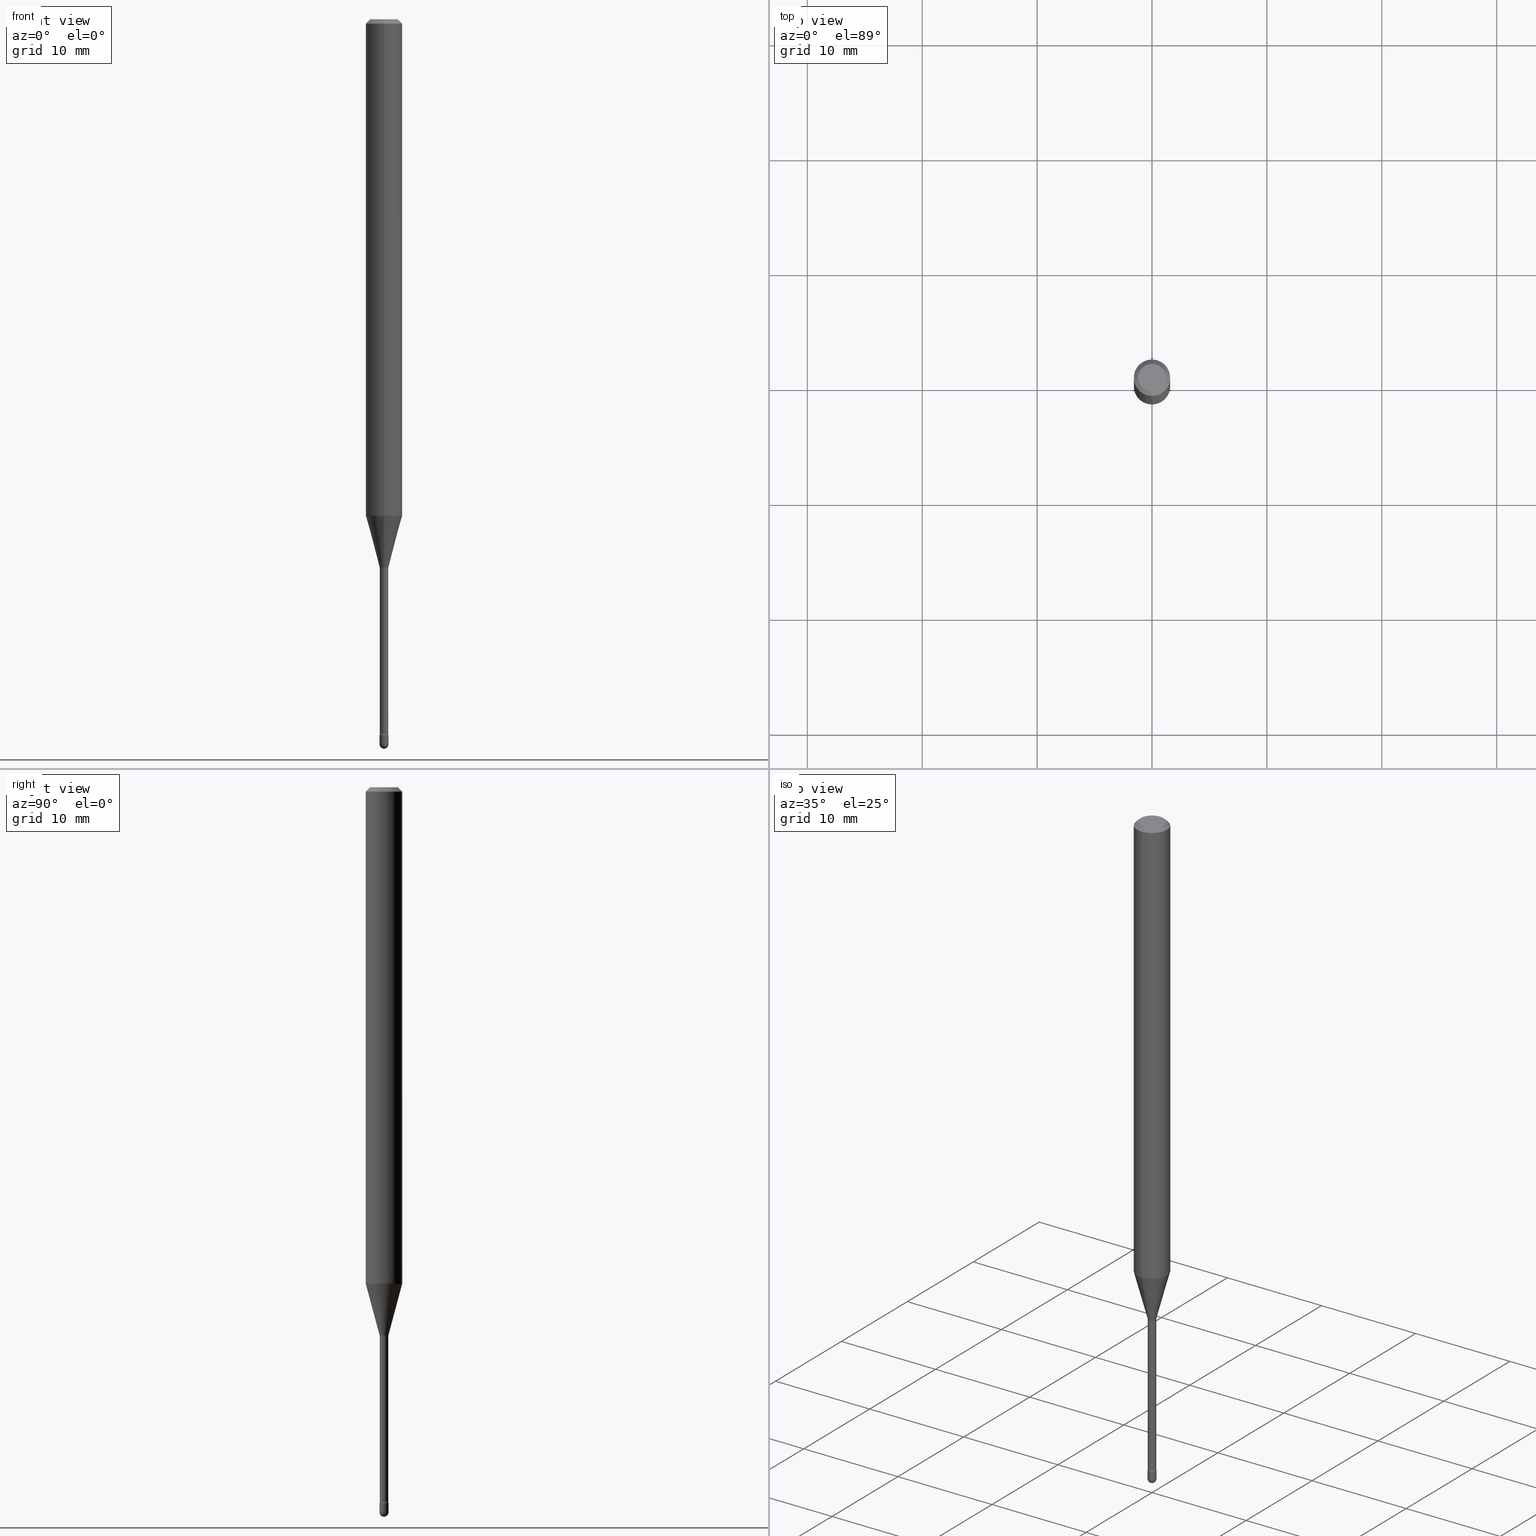
[diagram: canonical four-view strip — front | top / right | iso, engineering-drawing reading convention]
A machine part, canonical four-view strip (front | top / right | iso — engineering-drawing reading convention). The complete STEP part file that produces these views, byte-faithful:
ISO-10303-21;
HEADER;
FILE_DESCRIPTION (( 'STEP AP203' ),
    '1' );
FILE_NAME ('09443.STEP',
    '2024-04-09T23:13:16',
    ( '' ),
    ( '' ),
    'SwSTEP 2.0',
    'SolidWorks 2023',
    '' );
FILE_SCHEMA (( 'CONFIG_CONTROL_DESIGN' ));
ENDSEC;

DATA;
#1 = SPHERICAL_SURFACE ( 'NONE', #308, 0.01549999999999993744 ) ;
#2 = CARTESIAN_POINT ( 'NONE',  ( 6.075767248966972494E-29, -8.674585386355795965E-15, -2.484500000000000153 ) ) ;
#3 = APPLICATION_CONTEXT ( 'configuration controlled 3d designs of mechanical parts and assemblies' ) ;
#4 = ORIENTED_EDGE ( 'NONE', *, *, #561, .T. ) ;
#5 = DIRECTION ( 'NONE',  ( -2.445473815707476510E-29, 3.491474164922030519E-15, 1.000000000000000000 ) ) ;
#6 = DIRECTION ( 'NONE',  ( -2.445473815707476510E-29, 3.491474164922030519E-15, 1.000000000000000000 ) ) ;
#7 = AXIS2_PLACEMENT_3D ( 'NONE', #47, #6, #433 ) ;
#8 = EDGE_CURVE ( 'NONE', #174, #183, #133, .T. ) ;
#9 = DIMENSIONAL_EXPONENTS ( 1.000000000000000000, 0.000000000000000000, 0.000000000000000000, 0.000000000000000000, 0.000000000000000000, 0.000000000000000000, 0.000000000000000000 ) ;
#10 = ADVANCED_FACE ( 'NONE', ( #140 ), #106, .T. ) ;
#11 = DIRECTION ( 'NONE',  ( -2.445468806185136597E-29, 3.491481338843145583E-15, 1.000000000000000000 ) ) ;
#12 = DIRECTION ( 'NONE',  ( -2.445473815707476510E-29, 3.491474164922030519E-15, 1.000000000000000000 ) ) ;
#13 = DIRECTION ( 'NONE',  ( -2.445473815707476510E-29, 3.491474164922030519E-15, 1.000000000000000000 ) ) ;
#14 = CARTESIAN_POINT ( 'NONE',  ( 0.01549999999999999989, -8.727830476773153796E-15, -2.484500000000000153 ) ) ;
#15 = VECTOR ( 'NONE', #447, 39.37007874015748143 ) ;
#16 = DIRECTION ( 'NONE',  ( -2.445473815707476510E-29, 3.491474164922030519E-15, 1.000000000000000000 ) ) ;
#17 = CIRCLE ( 'NONE', #376, 0.06250000000000000000 ) ;
#18 = DIRECTION ( 'NONE',  ( 1.000000000000000000, -6.982962677686301420E-15, 0.000000000000000000 ) ) ;
#19 = EDGE_CURVE ( 'NONE', #302, #504, #483, .T. ) ;
#20 = CARTESIAN_POINT ( 'NONE',  ( 4.602310636769652825E-29, -6.570879850603192255E-15, -1.881974787463811083 ) ) ;
#21 = APPROVAL ( #369, 'UNSPECIFIED' ) ;
#22 = APPLICATION_PROTOCOL_DEFINITION ( 'international standard', 'config_control_design', 1994, #3 ) ;
#23 = ORIENTED_EDGE ( 'NONE', *, *, #29, .F. ) ;
#24 = ORIENTED_EDGE ( 'NONE', *, *, #389, .F. ) ;
#25 = CARTESIAN_POINT ( 'NONE',  ( 2.755524256971723102E-16, 0.01506111260565742675, -1.878092501787273161 ) ) ;
#26 = PERSON ( 'UNSPECIFIED', 'UNSPECIFIED', 'UNSPECIFIED', ('UNSPECIFIED'), ('UNSPECIFIED'), ('UNSPECIFIED') ) ;
#27 = ORIENTED_EDGE ( 'NONE', *, *, #380, .F. ) ;
#28 = VECTOR ( 'NONE', #424, 39.37007874015748143 ) ;
#29 = EDGE_CURVE ( 'NONE', #455, #549, #48, .T. ) ;
#30 = APPROVAL_DATE_TIME ( #156, #21 ) ;
#31 = DIRECTION ( 'NONE',  ( 6.982962677686265922E-15, 1.000000000000000000, 0.000000000000000000 ) ) ;
#32 = EDGE_LOOP ( 'NONE', ( #89, #385, #559, #365 ) ) ;
#33 = AXIS2_PLACEMENT_3D ( 'NONE', #277, #404, #18 ) ;
#34 = CARTESIAN_POINT ( 'NONE',  ( 0.000000000000000000, 0.000000000000000000, 0.000000000000000000 ) ) ;
#35 = VECTOR ( 'NONE', #310, 39.37007874015748143 ) ;
#36 = CARTESIAN_POINT ( 'NONE',  ( -1.169113584055446105E-44, 1.669184350826100908E-30, 4.780733988912460139E-16 ) ) ;
#37 = DIRECTION ( 'NONE',  ( -2.445473815707476510E-29, 3.491474164922030519E-15, 1.000000000000000000 ) ) ;
#38 = ORIENTED_EDGE ( 'NONE', *, *, #452, .T. ) ;
#39 = DIRECTION ( 'NONE',  ( 2.445473815707476510E-29, -3.491474164922030519E-15, -1.000000000000000000 ) ) ;
#40 = EDGE_LOOP ( 'NONE', ( #511, #178, #381, #75 ) ) ;
#41 = DIRECTION ( 'NONE',  ( 1.000000000000000000, -7.105427357601001070E-15, 4.926315420686887018E-29 ) ) ;
#42 = VECTOR ( 'NONE', #336, 39.37007874015748143 ) ;
#43 = AXIS2_PLACEMENT_3D ( 'NONE', #20, #13, #322 ) ;
#44 = CC_DESIGN_PERSON_AND_ORGANIZATION_ASSIGNMENT ( #213, #548, ( #386 ) ) ;
#45 = DESIGN_CONTEXT ( 'detailed design', #476, 'design' ) ;
#46 = EDGE_CURVE ( 'NONE', #111, #455, #422, .T. ) ;
#47 = CARTESIAN_POINT ( 'NONE',  ( 4.159868743774115107E-29, -5.939165717115708195E-15, -1.701048163777072908 ) ) ;
#48 = CIRCLE ( 'NONE', #33, 0.01549999999999999989 ) ;
#49 = TOROIDAL_SURFACE ( 'NONE', #43, 0.02954999999999999641, 0.01500000000000002200 ) ;
#50 = CARTESIAN_POINT ( 'NONE',  ( 4.602310636769652825E-29, -6.570879850603192255E-15, -1.881974787463811083 ) ) ;
#51 = CARTESIAN_POINT ( 'NONE',  ( 4.602320064564393687E-29, -6.570866349464526034E-15, -1.881974787463811083 ) ) ;
#52 = CARTESIAN_POINT ( 'NONE',  ( -1.051711872097357942E-16, -0.01506111260567053779, -1.878092501787273161 ) ) ;
#53 = DIRECTION ( 'NONE',  ( -6.982962677686268288E-15, -1.000000000000000000, 0.000000000000000000 ) ) ;
#54 = CARTESIAN_POINT ( 'NONE',  ( 0.000000000000000000, 0.000000000000000000, 0.000000000000000000 ) ) ;
#55 = ADVANCED_FACE ( 'NONE', ( #152 ), #317, .F. ) ;
#56 = APPROVAL_ROLE ( '' ) ;
#57 = FACE_OUTER_BOUND ( 'NONE', #40, .T. ) ;
#58 = EDGE_CURVE ( 'NONE', #356, #292, #59, .T. ) ;
#59 = CIRCLE ( 'NONE', #76, 0.01500000000000001159 ) ;
#60 = AXIS2_PLACEMENT_3D ( 'NONE', #197, #240, #286 ) ;
#61 = TOROIDAL_SURFACE ( 'NONE', #553, 0.02954999999999999641, 0.01500000000000002200 ) ;
#62 = DATE_AND_TIME ( #154, #77 ) ;
#63 = ORIENTED_EDGE ( 'NONE', *, *, #500, .T. ) ;
#64 = DIRECTION ( 'NONE',  ( -2.445473815707476510E-29, 3.491474164922030519E-15, 1.000000000000000000 ) ) ;
#65 = ORIENTED_EDGE ( 'NONE', *, *, #507, .F. ) ;
#66 = MECHANICAL_CONTEXT ( 'NONE', #3, 'mechanical' ) ;
#67 = AXIS2_PLACEMENT_3D ( 'NONE', #74, #80, #387 ) ;
#68 = AXIS2_PLACEMENT_3D ( 'NONE', #445, #41, #95 ) ;
#69 = DIRECTION ( 'NONE',  ( -1.000000000000000000, 6.982962677686265922E-15, -4.883557194083112901E-29 ) ) ;
#70 = FACE_OUTER_BOUND ( 'NONE', #227, .T. ) ;
#71 = DIRECTION ( 'NONE',  ( 1.000000000000000000, -6.982962677686238312E-15, 0.000000000000000000 ) ) ;
#72 = VERTEX_POINT ( 'NONE', #434 ) ;
#73 = ORIENTED_EDGE ( 'NONE', *, *, #220, .T. ) ;
#74 = CARTESIAN_POINT ( 'NONE',  ( 5.985900383404751358E-29, -8.546244252633021898E-15, -2.447746667724196357 ) ) ;
#75 = ORIENTED_EDGE ( 'NONE', *, *, #146, .F. ) ;
#76 = AXIS2_PLACEMENT_3D ( 'NONE', #442, #241, #53 ) ;
#77 = LOCAL_TIME ( 19, 13, 16.00000000000000000, #330 ) ;
#78 = ORIENTED_EDGE ( 'NONE', *, *, #220, .F. ) ;
#79 = ORIENTED_EDGE ( 'NONE', *, *, #100, .T. ) ;
#80 = DIRECTION ( 'NONE',  ( -2.445473815707476510E-29, 3.491474164922030519E-15, 1.000000000000000000 ) ) ;
#81 = DIRECTION ( 'NONE',  ( -6.982962677686265922E-15, -1.000000000000000000, 0.000000000000000000 ) ) ;
#82 = EDGE_LOOP ( 'NONE', ( #289, #79, #182, #137 ) ) ;
#83 = ORIENTED_EDGE ( 'NONE', *, *, #401, .T. ) ;
#84 = DIRECTION ( 'NONE',  ( 1.000000000000000000, -6.982962677686301420E-15, 0.000000000000000000 ) ) ;
#85 = VERTEX_POINT ( 'NONE', #477 ) ;
#86 = TOROIDAL_SURFACE ( 'NONE', #502, 0.02955000000000003804, 0.01500000000000001506 ) ;
#87 = LINE ( 'NONE', #238, #175 ) ;
#88 = AXIS2_PLACEMENT_3D ( 'NONE', #247, #239, #565 ) ;
#89 = ORIENTED_EDGE ( 'NONE', *, *, #122, .F. ) ;
#90 = ADVANCED_FACE ( 'NONE', ( #524 ), #465, .T. ) ;
#91 = DIRECTION ( 'NONE',  ( 6.982962677686265922E-15, 1.000000000000000000, 0.000000000000000000 ) ) ;
#92 = DIRECTION ( 'NONE',  ( 1.000000000000000000, -6.982962677686301420E-15, 0.000000000000000000 ) ) ;
#93 = CARTESIAN_POINT ( 'NONE',  ( 2.023589285005646150E-45, -2.889068848000358283E-31, -8.274737283279840754E-17 ) ) ;
#94 = CIRCLE ( 'NONE', #67, 0.01455000000000002472 ) ;
#95 = DIRECTION ( 'NONE',  ( 7.105427357600999492E-15, 1.000000000000000000, 0.000000000000000000 ) ) ;
#96 = VERTEX_POINT ( 'NONE', #193 ) ;
#97 = PLANE ( 'NONE',  #509 ) ;
#98 = CARTESIAN_POINT ( 'NONE',  ( -4.364351673553916201E-16, -0.06250000000000000000, 6.962905341988730200E-16 ) ) ;
#99 = CARTESIAN_POINT ( 'NONE',  ( 4.592826036597323765E-29, -6.557311449324046967E-15, -1.878092501787273161 ) ) ;
#100 = EDGE_CURVE ( 'NONE', #85, #356, #264, .T. ) ;
#101 = PERSON_AND_ORGANIZATION_ROLE ( 'creator' ) ;
#102 = DIRECTION ( 'NONE',  ( -6.982962677686265922E-15, -1.000000000000000000, 3.483106191921935554E-15 ) ) ;
#103 = ADVANCED_FACE ( 'NONE', ( #145 ), #521, .T. ) ;
#104 = VECTOR ( 'NONE', #132, 39.37007874015748143 ) ;
#105 = ORIENTED_EDGE ( 'NONE', *, *, #259, .T. ) ;
#106 = PLANE ( 'NONE',  #224 ) ;
#107 = APPROVAL_STATUS ( 'not_yet_approved' ) ;
#108 = EDGE_CURVE ( 'NONE', #183, #174, #395, .T. ) ;
#109 = ORIENTED_EDGE ( 'NONE', *, *, #515, .T. ) ;
#110 = ADVANCED_BREP_SHAPE_REPRESENTATION ( '09443', ( #297, #285, #432 ), #423 ) ;
#111 = VERTEX_POINT ( 'NONE', #14 ) ;
#112 = DIRECTION ( 'NONE',  ( 6.982962677686265922E-15, 1.000000000000000000, -3.483106191921935554E-15 ) ) ;
#113 = PERSON_AND_ORGANIZATION_ROLE ( 'classification_officer' ) ;
#114 = DIRECTION ( 'NONE',  ( -2.445473815707476510E-29, 3.491474164922030519E-15, 1.000000000000000000 ) ) ;
#115 = AXIS2_PLACEMENT_3D ( 'NONE', #34, #417, #497 ) ;
#116 = EDGE_LOOP ( 'NONE', ( #27, #158, #416, #73 ) ) ;
#117 = CIRCLE ( 'NONE', #288, 0.04749999999999999362 ) ;
#118 = DIRECTION ( 'NONE',  ( -6.982962677686266711E-15, -1.000000000000000000, 3.491474164922029336E-15 ) ) ;
#119 = EDGE_LOOP ( 'NONE', ( #303, #304, #418, #300 ) ) ;
#120 = ORIENTED_EDGE ( 'NONE', *, *, #479, .T. ) ;
#121 = CARTESIAN_POINT ( 'NONE',  ( -1.101341240427545269E-16, -0.01550000000000864402, -2.484500000000000153 ) ) ;
#122 = EDGE_CURVE ( 'NONE', #85, #162, #167, .T. ) ;
#123 = CARTESIAN_POINT ( 'NONE',  ( 1.070156415442400836E-16, 0.01506111260565742502, -1.878092501787273161 ) ) ;
#124 = ORIENTED_EDGE ( 'NONE', *, *, #8, .F. ) ;
#125 = AXIS2_PLACEMENT_3D ( 'NONE', #51, #237, #190 ) ;
#126 = AXIS2_PLACEMENT_3D ( 'NONE', #491, #323, #485 ) ;
#127 = PRODUCT_RELATED_PRODUCT_CATEGORY ( 'detail', '', ( #449 ) ) ;
#128 = VERTEX_POINT ( 'NONE', #321 ) ;
#129 = DIRECTION ( 'NONE',  ( -2.445468806185136597E-29, 3.491481338843145583E-15, 1.000000000000000000 ) ) ;
#130 = DIRECTION ( 'NONE',  ( -6.982962677686265922E-15, -1.000000000000000000, 3.491474164922030125E-15 ) ) ;
#131 = VERTEX_POINT ( 'NONE', #444 ) ;
#132 = DIRECTION ( 'NONE',  ( -2.445473815707476510E-29, 3.491474164922030519E-15, 1.000000000000000000 ) ) ;
#133 = CIRCLE ( 'NONE', #351, 0.06250000000000000000 ) ;
#134 = CC_DESIGN_SECURITY_CLASSIFICATION ( #396, ( #177 ) ) ;
#135 = CONICAL_SURFACE ( 'NONE', #326, 0.01506111260566398054, 0.2617993877991499074 ) ;
#136 = ORIENTED_EDGE ( 'NONE', *, *, #479, .F. ) ;
#137 = ORIENTED_EDGE ( 'NONE', *, *, #19, .F. ) ;
#138 = DIRECTION ( 'NONE',  ( -2.445468806185136597E-29, 3.491481338843145583E-15, 1.000000000000000000 ) ) ;
#139 = DIRECTION ( 'NONE',  ( -2.445473815707476510E-29, 3.491474164922030519E-15, 1.000000000000000000 ) ) ;
#140 = FACE_OUTER_BOUND ( 'NONE', #311, .T. ) ;
#141 = DIRECTION ( 'NONE',  ( -6.982962677686266711E-15, -1.000000000000000000, 3.491474164922029336E-15 ) ) ;
#142 = FACE_OUTER_BOUND ( 'NONE', #558, .T. ) ;
#143 = PLANE ( 'NONE',  #126 ) ;
#144 = DIRECTION ( 'NONE',  ( 1.000000000000000000, -6.982962677686265922E-15, 4.876176775795935793E-29 ) ) ;
#145 = FACE_OUTER_BOUND ( 'NONE', #215, .T. ) ;
#146 = EDGE_CURVE ( 'NONE', #183, #72, #188, .T. ) ;
#147 = ORIENTED_EDGE ( 'NONE', *, *, #512, .F. ) ;
#148 = LOCAL_TIME ( 19, 13, 16.00000000000000000, #494 ) ;
#149 = CARTESIAN_POINT ( 'NONE',  ( -2.063465471255831169E-16, -0.02955000000000656407, -1.881974787463811083 ) ) ;
#150 = EDGE_CURVE ( 'NONE', #128, #378, #184, .T. ) ;
#151 = CYLINDRICAL_SURFACE ( 'NONE', #450, 0.01549999999999999989 ) ;
#152 = FACE_OUTER_BOUND ( 'NONE', #32, .T. ) ;
#153 = DIRECTION ( 'NONE',  ( -6.982962677686265922E-15, -1.000000000000000000, 0.000000000000000000 ) ) ;
#154 = CALENDAR_DATE ( 2024, 9, 4 ) ;
#155 = ADVANCED_FACE ( 'NONE', ( #517 ), #486, .T. ) ;
#156 = DATE_AND_TIME ( #411, #185 ) ;
#157 = CIRCLE ( 'NONE', #510, 0.01506111260566398054 ) ;
#158 = ORIENTED_EDGE ( 'NONE', *, *, #515, .F. ) ;
#159 = DIRECTION ( 'NONE',  ( -6.982962677686265922E-15, -1.000000000000000000, 3.483106191921935554E-15 ) ) ;
#160 = PERSON_AND_ORGANIZATION ( #26, #353 ) ;
#161 = CYLINDRICAL_SURFACE ( 'NONE', #436, 0.06250000000000000000 ) ;
#162 = VERTEX_POINT ( 'NONE', #230 ) ;
#163 = PERSON_AND_ORGANIZATION ( #26, #353 ) ;
#164 = VERTEX_POINT ( 'NONE', #52 ) ;
#165 = FACE_OUTER_BOUND ( 'NONE', #82, .T. ) ;
#166 = EDGE_CURVE ( 'NONE', #378, #72, #87, .T. ) ;
#167 = CIRCLE ( 'NONE', #231, 0.01500000000000001159 ) ;
#168 = ORIENTED_EDGE ( 'NONE', *, *, #166, .F. ) ;
#169 = APPROVAL_PERSON_ORGANIZATION ( #542, #468, #539 ) ;
#170 = CARTESIAN_POINT ( 'NONE',  ( 5.985888121363136129E-29, -8.546261812574526278E-15, -2.447746667724196357 ) ) ;
#171 = LINE ( 'NONE', #388, #35 ) ;
#172 = CARTESIAN_POINT ( 'NONE',  ( -0.01549999999999999989, 1.101341240428155280E-16, -7.624349389895103058E-31 ) ) ;
#173 = CC_DESIGN_PERSON_AND_ORGANIZATION_ASSIGNMENT ( #446, #248, ( #177 ) ) ;
#174 = VERTEX_POINT ( 'NONE', #354 ) ;
#175 = VECTOR ( 'NONE', #319, 39.37007874015748143 ) ;
#176 = FACE_OUTER_BOUND ( 'NONE', #409, .T. ) ;
#177 = PRODUCT_DEFINITION_FORMATION_WITH_SPECIFIED_SOURCE ( 'ANY', '', #449, .NOT_KNOWN. ) ;
#178 = ORIENTED_EDGE ( 'NONE', *, *, #398, .T. ) ;
#179 = ADVANCED_FACE ( 'NONE', ( #399 ), #1, .T. ) ;
#180 = ORIENTED_EDGE ( 'NONE', *, *, #150, .F. ) ;
#181 = DIRECTION ( 'NONE',  ( -6.982962677686265133E-15, -1.000000000000000000, 0.000000000000000000 ) ) ;
#182 = ORIENTED_EDGE ( 'NONE', *, *, #466, .T. ) ;
#183 = VERTEX_POINT ( 'NONE', #275 ) ;
#184 = CIRCLE ( 'NONE', #490, 0.04749999999999999362 ) ;
#185 = LOCAL_TIME ( 19, 13, 16.00000000000000000, #498 ) ;
#186 = CARTESIAN_POINT ( 'NONE',  ( 3.668210723561235154E-31, -5.237211247383074400E-17, -0.01500000000000008271 ) ) ;
#187 = EDGE_CURVE ( 'NONE', #85, #302, #228, .T. ) ;
#188 = LINE ( 'NONE', #98, #104 ) ;
#189 = CARTESIAN_POINT ( 'NONE',  ( 2.023589285005646150E-45, -2.889068848000358283E-31, -8.274737283279840754E-17 ) ) ;
#190 = DIRECTION ( 'NONE',  ( -6.982962677686266711E-15, -1.000000000000000000, 0.000000000000000000 ) ) ;
#191 = ORIENTED_EDGE ( 'NONE', *, *, #500, .F. ) ;
#192 = DIRECTION ( 'NONE',  ( -6.982962677686265922E-15, -1.000000000000000000, 0.000000000000000000 ) ) ;
#193 = CARTESIAN_POINT ( 'NONE',  ( 6.114334769336955252E-29, -8.727754245838525120E-15, -2.500000000000000000 ) ) ;
#194 = VECTOR ( 'NONE', #551, 39.37007874015748854 ) ;
#195 = CC_DESIGN_APPROVAL ( #236, ( #396 ) ) ;
#196 = CARTESIAN_POINT ( 'NONE',  ( 4.440892098500625669E-16, 0.06250000000000000000, 2.598562635836191558E-16 ) ) ;
#197 = CARTESIAN_POINT ( 'NONE',  ( 6.075767248966972494E-29, -8.674585386355795965E-15, -2.484500000000000153 ) ) ;
#198 = ORIENTED_EDGE ( 'NONE', *, *, #348, .T. ) ;
#199 = DIRECTION ( 'NONE',  ( -1.000000000000000000, 7.105427357601001070E-15, -4.926315508542082329E-29 ) ) ;
#200 = ORIENTED_EDGE ( 'NONE', *, *, #208, .F. ) ;
#201 = PERSON_AND_ORGANIZATION_ROLE ( 'design_owner' ) ;
#202 = ORIENTED_EDGE ( 'NONE', *, *, #19, .T. ) ;
#203 = APPROVAL_DATE_TIME ( #210, #468 ) ;
#204 = AXIS2_PLACEMENT_3D ( 'NONE', #533, #64, #153 ) ;
#205 = ORIENTED_EDGE ( 'NONE', *, *, #259, .F. ) ;
#206 = CIRCLE ( 'NONE', #361, 0.01549999999999999989 ) ;
#207 =( LENGTH_UNIT ( ) NAMED_UNIT ( * ) SI_UNIT ( $, .METRE. ) );
#208 = EDGE_CURVE ( 'NONE', #128, #131, #254, .T. ) ;
#209 = DIRECTION ( 'NONE',  ( 2.445473815707476230E-29, -3.491474164922030519E-15, -1.000000000000000000 ) ) ;
#210 = DATE_AND_TIME ( #258, #384 ) ;
#211 = CARTESIAN_POINT ( 'NONE',  ( 4.592826036597323765E-29, -6.557311449324046967E-15, -1.878092501787273161 ) ) ;
#212 = ORIENTED_EDGE ( 'NONE', *, *, #187, .T. ) ;
#213 = PERSON_AND_ORGANIZATION ( #26, #353 ) ;
#214 = CARTESIAN_POINT ( 'NONE',  ( -0.01549999999999999989, -8.509460431226201399E-15, -2.484500000000000153 ) ) ;
#215 = EDGE_LOOP ( 'NONE', ( #505, #212, #78, #377 ) ) ;
#216 = ADVANCED_FACE ( 'NONE', ( #57 ), #161, .T. ) ;
#217 = AXIS2_PLACEMENT_3D ( 'NONE', #357, #273, #181 ) ;
#218 = CIRCLE ( 'NONE', #88, 0.01549999999999993744 ) ;
#219 = FACE_OUTER_BOUND ( 'NONE', #544, .T. ) ;
#220 = EDGE_CURVE ( 'NONE', #504, #302, #375, .T. ) ;
#221 = DIRECTION ( 'NONE',  ( -2.445473815707476510E-29, 3.491474164922030519E-15, 1.000000000000000000 ) ) ;
#222 = ORIENTED_EDGE ( 'NONE', *, *, #557, .F. ) ;
#223 = DIRECTION ( 'NONE',  ( -2.445473815707476510E-29, 3.491474164922030519E-15, 1.000000000000000000 ) ) ;
#224 = AXIS2_PLACEMENT_3D ( 'NONE', #523, #481, #144 ) ;
#225 = CARTESIAN_POINT ( 'NONE',  ( 6.075767248966972494E-29, -8.674585386355795965E-15, -2.484500000000000153 ) ) ;
#226 = LOCAL_TIME ( 19, 13, 16.00000000000000000, #291 ) ;
#227 = EDGE_LOOP ( 'NONE', ( #109, #342, #251, #147 ) ) ;
#228 = LINE ( 'NONE', #370, #42 ) ;
#229 = EDGE_CURVE ( 'NONE', #162, #292, #255, .T. ) ;
#230 = CARTESIAN_POINT ( 'NONE',  ( 1.101341240428755801E-16, 0.01549999999999144597, -2.452999999999999847 ) ) ;
#231 = AXIS2_PLACEMENT_3D ( 'NONE', #514, #393, #280 ) ;
#232 = AXIS2_PLACEMENT_3D ( 'NONE', #261, #37, #499 ) ;
#233 = DIRECTION ( 'NONE',  ( -2.445473815707476510E-29, 3.491474164922030519E-15, 1.000000000000000000 ) ) ;
#234 = FACE_OUTER_BOUND ( 'NONE', #270, .T. ) ;
#235 = ADVANCED_FACE ( 'NONE', ( #408 ), #97, .F. ) ;
#236 = APPROVAL ( #107, 'UNSPECIFIED' ) ;
#237 = DIRECTION ( 'NONE',  ( -2.445473815707476510E-29, 3.491474164922030519E-15, 1.000000000000000000 ) ) ;
#238 = CARTESIAN_POINT ( 'NONE',  ( -4.287811248607203282E-16, -0.06250000000000005551, -0.01499999999999986587 ) ) ;
#239 = DIRECTION ( 'NONE',  ( 1.000000000000000000, -6.982962677686265922E-15, 4.883557194083112340E-29 ) ) ;
#240 = DIRECTION ( 'NONE',  ( -2.445468806185136597E-29, 3.491481338843145583E-15, 1.000000000000000000 ) ) ;
#241 = DIRECTION ( 'NONE',  ( -1.000000000000000000, 6.982962677686265922E-15, -4.883557194083112340E-29 ) ) ;
#242 = CARTESIAN_POINT ( 'NONE',  ( 3.668210723561235154E-31, -5.237211247383074400E-17, -0.01500000000000008271 ) ) ;
#243 = VERTEX_POINT ( 'NONE', #410 ) ;
#244 = APPROVAL_DATE_TIME ( #338, #236 ) ;
#245 = CIRCLE ( 'NONE', #278, 0.06250000000000000000 ) ;
#246 = CONICAL_SURFACE ( 'NONE', #474, 0.06250000000000000000, 0.7853981633974483900 ) ;
#247 = CARTESIAN_POINT ( 'NONE',  ( 6.075767248966972494E-29, -8.674585386355795965E-15, -2.484500000000000153 ) ) ;
#248 = PERSON_AND_ORGANIZATION_ROLE ( 'design_supplier' ) ;
#249 = VERTEX_POINT ( 'NONE', #25 ) ;
#250 = CALENDAR_DATE ( 2024, 9, 4 ) ;
#251 = ORIENTED_EDGE ( 'NONE', *, *, #108, .F. ) ;
#252 = ORIENTED_EDGE ( 'NONE', *, *, #561, .F. ) ;
#253 = APPROVAL_STATUS ( 'not_yet_approved' ) ;
#254 = LINE ( 'NONE', #530, #15 ) ;
#255 = CIRCLE ( 'NONE', #204, 0.01549999999999999989 ) ;
#256 = CC_DESIGN_APPROVAL ( #21, ( #177 ) ) ;
#257 = ORIENTED_EDGE ( 'NONE', *, *, #452, .F. ) ;
#258 = CALENDAR_DATE ( 2024, 9, 4 ) ;
#259 = EDGE_CURVE ( 'NONE', #131, #72, #245, .T. ) ;
#260 = CARTESIAN_POINT ( 'NONE',  ( 0.01549999999999999989, -8.672839645686373673E-15, -2.452999999999999847 ) ) ;
#261 = CARTESIAN_POINT ( 'NONE',  ( 5.998747269930439159E-29, -8.564586126553740940E-15, -2.452999999999999847 ) ) ;
#262 = EDGE_LOOP ( 'NONE', ( #252, #120, #475, #191 ) ) ;
#263 = FACE_OUTER_BOUND ( 'NONE', #350, .T. ) ;
#264 = CIRCLE ( 'NONE', #217, 0.01455000000000002472 ) ;
#265 = AXIS2_PLACEMENT_3D ( 'NONE', #469, #114, #81 ) ;
#266 = DIRECTION ( 'NONE',  ( -6.982962677686265922E-15, -1.000000000000000000, 3.491474164922030519E-15 ) ) ;
#267 = DIRECTION ( 'NONE',  ( -2.445468806185136597E-29, 3.491481338843145583E-15, 1.000000000000000000 ) ) ;
#268 = DIRECTION ( 'NONE',  ( -2.445473815707476510E-29, 3.491474164922030519E-15, 1.000000000000000000 ) ) ;
#269 = EDGE_CURVE ( 'NONE', #549, #243, #541, .T. ) ;
#270 = EDGE_LOOP ( 'NONE', ( #272, #529, #202, #420 ) ) ;
#271 = CIRCLE ( 'NONE', #528, 0.01549999999999999989 ) ;
#272 = ORIENTED_EDGE ( 'NONE', *, *, #414, .F. ) ;
#273 = DIRECTION ( 'NONE',  ( -2.445473815707476510E-29, 3.491474164922030519E-15, 1.000000000000000000 ) ) ;
#274 = LENGTH_MEASURE_WITH_UNIT ( LENGTH_MEASURE( 0.02539999999999999897 ), #207 );
#275 = CARTESIAN_POINT ( 'NONE',  ( -4.364351673553500570E-16, -0.06250000000000595357, -1.701048163777072464 ) ) ;
#276 = CC_DESIGN_DATE_AND_TIME_ASSIGNMENT ( #62, #287, ( #386 ) ) ;
#277 = CARTESIAN_POINT ( 'NONE',  ( 6.075767248966972494E-29, -8.674585386355795965E-15, -2.484500000000000153 ) ) ;
#278 = AXIS2_PLACEMENT_3D ( 'NONE', #374, #443, #159 ) ;
#279 = VECTOR ( 'NONE', #367, 39.37007874015748143 ) ;
#280 = DIRECTION ( 'NONE',  ( 7.105427357601003436E-15, 1.000000000000000000, 0.000000000000000000 ) ) ;
#281 = LINE ( 'NONE', #347, #344 ) ;
#282 = DIRECTION ( 'NONE',  ( 2.445473815707476510E-29, -3.491474164922030519E-15, -1.000000000000000000 ) ) ;
#283 = COORDINATED_UNIVERSAL_TIME_OFFSET ( 5, 0, .BEHIND. ) ;
#284 = CARTESIAN_POINT ( 'NONE',  ( 1.082359215041976490E-16, 0.01549999999999129678, -2.484500000000000153 ) ) ;
#285 = MANIFOLD_SOLID_BREP ( 'Body-Move/Copy2[2]', #318 ) ;
#286 = DIRECTION ( 'NONE',  ( 1.000000000000000000, -6.982962677686301420E-15, 0.000000000000000000 ) ) ;
#287 = DATE_TIME_ROLE ( 'creation_date' ) ;
#288 = AXIS2_PLACEMENT_3D ( 'NONE', #189, #513, #531 ) ;
#289 = ORIENTED_EDGE ( 'NONE', *, *, #187, .F. ) ;
#290 = DIRECTION ( 'NONE',  ( -2.445473815707476510E-29, 3.491474164922030519E-15, 1.000000000000000000 ) ) ;
#291 = COORDINATED_UNIVERSAL_TIME_OFFSET ( 5, 0, .BEHIND. ) ;
#292 = VERTEX_POINT ( 'NONE', #506 ) ;
#293 = PERSON_AND_ORGANIZATION ( #26, #353 ) ;
#294 = ADVANCED_FACE ( 'NONE', ( #263 ), #379, .T. ) ;
#295 = CARTESIAN_POINT ( 'NONE',  ( 6.075767248966972494E-29, -8.674585386355795965E-15, -2.484500000000000153 ) ) ;
#296 = CALENDAR_DATE ( 2024, 9, 4 ) ;
#297 = MANIFOLD_SOLID_BREP ( 'Body-Move/Copy2[1]', #448 ) ;
#298 = AXIS2_PLACEMENT_3D ( 'NONE', #402, #233, #141 ) ;
#299 =( NAMED_UNIT ( * ) SI_UNIT ( $, .STERADIAN. ) SOLID_ANGLE_UNIT ( ) );
#300 = ORIENTED_EDGE ( 'NONE', *, *, #58, .F. ) ;
#301 = CIRCLE ( 'NONE', #265, 0.01506111260566398054 ) ;
#302 = VERTEX_POINT ( 'NONE', #560 ) ;
#303 = ORIENTED_EDGE ( 'NONE', *, *, #100, .F. ) ;
#304 = ORIENTED_EDGE ( 'NONE', *, *, #122, .T. ) ;
#305 = FACE_OUTER_BOUND ( 'NONE', #119, .T. ) ;
#306 =( NAMED_UNIT ( * ) PLANE_ANGLE_UNIT ( ) SI_UNIT ( $, .RADIAN. ) );
#307 = CYLINDRICAL_SURFACE ( 'NONE', #562, 0.01455000000000001084 ) ;
#308 = AXIS2_PLACEMENT_3D ( 'NONE', #394, #518, #91 ) ;
#309 = CIRCLE ( 'NONE', #563, 0.01549999999999993744 ) ;
#310 = DIRECTION ( 'NONE',  ( -1.807323732225327773E-15, -0.2588190451025178529, 0.9659258262890690894 ) ) ;
#311 = EDGE_LOOP ( 'NONE', ( #198, #83 ) ) ;
#312 = LINE ( 'NONE', #196, #467 ) ;
#313 = ADVANCED_FACE ( 'NONE', ( #382 ), #412, .T. ) ;
#314 = ORIENTED_EDGE ( 'NONE', *, *, #389, .T. ) ;
#315 = CARTESIAN_POINT ( 'NONE',  ( -1.169113584055446105E-44, 1.669184350826100908E-30, 4.780733988912460139E-16 ) ) ;
#316 = ORIENTED_EDGE ( 'NONE', *, *, #46, .T. ) ;
#317 = TOROIDAL_SURFACE ( 'NONE', #405, 0.02955000000000003804, 0.01500000000000001506 ) ;
#318 = CLOSED_SHELL ( 'NONE', ( #366, #103, #358, #362, #216, #545, #313, #155, #90, #235, #554, #55, #320, #495 ) ) ;
#319 = DIRECTION ( 'NONE',  ( -4.851104656540964275E-15, -0.7071067811865500152, -0.7071067811865450192 ) ) ;
#320 = ADVANCED_FACE ( 'NONE', ( #165 ), #307, .T. ) ;
#321 = CARTESIAN_POINT ( 'NONE',  ( 3.840629472727447874E-16, 0.04749999999999999362, -2.485923956665948360E-16 ) ) ;
#322 = DIRECTION ( 'NONE',  ( -6.982962677686265922E-15, -1.000000000000000000, 3.491474164922030125E-15 ) ) ;
#323 = DIRECTION ( 'NONE',  ( -2.445473815707476230E-29, 3.491474164922030519E-15, 1.000000000000000000 ) ) ;
#324 = CARTESIAN_POINT ( 'NONE',  ( 4.602320064564393687E-29, -6.570866349464526034E-15, -1.881974787463811083 ) ) ;
#325 = AXIS2_PLACEMENT_3D ( 'NONE', #295, #69, #31 ) ;
#326 = AXIS2_PLACEMENT_3D ( 'NONE', #211, #543, #341 ) ;
#327 = DIRECTION ( 'NONE',  ( -6.982962677686266711E-15, -1.000000000000000000, 3.491474164922030914E-15 ) ) ;
#328 = DIRECTION ( 'NONE',  ( -2.445473815707476510E-29, 3.491474164922030519E-15, 1.000000000000000000 ) ) ;
#329 = DIRECTION ( 'NONE',  ( -6.982962677686266711E-15, -1.000000000000000000, 0.000000000000000000 ) ) ;
#330 = COORDINATED_UNIVERSAL_TIME_OFFSET ( 5, 0, .BEHIND. ) ;
#331 = EDGE_CURVE ( 'NONE', #356, #85, #94, .T. ) ;
#332 = LINE ( 'NONE', #488, #279 ) ;
#333 = CARTESIAN_POINT ( 'NONE',  ( 4.159868743774115107E-29, -5.939165717115708195E-15, -1.701048163777072908 ) ) ;
#334 = EDGE_LOOP ( 'NONE', ( #525, #472, #345, #205 ) ) ;
#335 = SECURITY_CLASSIFICATION_LEVEL ( 'unclassified' ) ;
#336 = DIRECTION ( 'NONE',  ( -2.445473815707476510E-29, 3.491474164922030519E-15, 1.000000000000000000 ) ) ;
#337 = CIRCLE ( 'NONE', #68, 0.01500000000000002373 ) ;
#338 = DATE_AND_TIME ( #250, #226 ) ;
#339 = CARTESIAN_POINT ( 'NONE',  ( -1.169113584055446105E-44, 1.669184350826100908E-30, 4.780733988912460139E-16 ) ) ;
#340 = PERSON_AND_ORGANIZATION ( #26, #353 ) ;
#341 = DIRECTION ( 'NONE',  ( -6.982962677686265922E-15, -1.000000000000000000, 0.000000000000000000 ) ) ;
#342 = ORIENTED_EDGE ( 'NONE', *, *, #352, .T. ) ;
#343 = AXIS2_PLACEMENT_3D ( 'NONE', #457, #464, #547 ) ;
#344 = VECTOR ( 'NONE', #139, 39.37007874015748143 ) ;
#345 = ORIENTED_EDGE ( 'NONE', *, *, #146, .T. ) ;
#346 = ADVANCED_FACE ( 'NONE', ( #176 ), #460, .T. ) ;
#347 = CARTESIAN_POINT ( 'NONE',  ( -1.016021069603352548E-16, -0.01455000000000001084, 5.288743479908616571E-16 ) ) ;
#348 = EDGE_CURVE ( 'NONE', #349, #243, #431, .T. ) ;
#349 = VERTEX_POINT ( 'NONE', #260 ) ;
#350 = EDGE_LOOP ( 'NONE', ( #136, #4, #24, #23 ) ) ;
#351 = AXIS2_PLACEMENT_3D ( 'NONE', #333, #290, #536 ) ;
#352 = EDGE_CURVE ( 'NONE', #249, #174, #426, .T. ) ;
#353 = ORGANIZATION ( 'UNSPECIFIED', 'UNSPECIFIED', '' ) ;
#354 = CARTESIAN_POINT ( 'NONE',  ( 4.440892098501039328E-16, 0.06249999999999404643, -1.701048163777073130 ) ) ;
#355 = DIRECTION ( 'NONE',  ( 6.982962677686265922E-15, 1.000000000000000000, -3.483106191921935554E-15 ) ) ;
#356 = VERTEX_POINT ( 'NONE', #421 ) ;
#357 = CARTESIAN_POINT ( 'NONE',  ( 5.985900383404751358E-29, -8.546244252633021898E-15, -2.447746667724196357 ) ) ;
#358 = ADVANCED_FACE ( 'NONE', ( #305 ), #86, .F. ) ;
#359 = ORIENTED_EDGE ( 'NONE', *, *, #414, .T. ) ;
#360 = AXIS2_PLACEMENT_3D ( 'NONE', #556, #267, #71 ) ;
#361 = AXIS2_PLACEMENT_3D ( 'NONE', #403, #480, #392 ) ;
#362 = ADVANCED_FACE ( 'NONE', ( #219 ), #246, .T. ) ;
#363 = DIRECTION ( 'NONE',  ( -2.445473815707476510E-29, 3.491474164922030519E-15, 1.000000000000000000 ) ) ;
#364 = PRODUCT_DEFINITION_SHAPE ( 'NONE', 'NONE',  #386 ) ;
#365 = ORIENTED_EDGE ( 'NONE', *, *, #507, .T. ) ;
#366 = ADVANCED_FACE ( 'NONE', ( #234 ), #49, .F. ) ;
#367 = DIRECTION ( 'NONE',  ( -2.445468806185136877E-29, 3.491481338843145188E-15, 1.000000000000000000 ) ) ;
#368 = CARTESIAN_POINT ( 'NONE',  ( 3.316907271900976096E-16, 0.04749999999999999362, 3.181799019542745485E-17 ) ) ;
#369 = APPROVAL_STATUS ( 'not_yet_approved' ) ;
#370 = CARTESIAN_POINT ( 'NONE',  ( 1.033839680530946418E-16, 0.01455000000000001084, 4.272724497916305187E-16 ) ) ;
#371 = ORIENTED_EDGE ( 'NONE', *, *, #229, .F. ) ;
#372 = EDGE_LOOP ( 'NONE', ( #65, #371 ) ) ;
#373 = ADVANCED_FACE ( 'NONE', ( #142 ), #151, .T. ) ;
#374 = CARTESIAN_POINT ( 'NONE',  ( 3.668210723561235154E-31, -5.237211247383074400E-17, -0.01500000000000008271 ) ) ;
#375 = CIRCLE ( 'NONE', #125, 0.01455000000000000043 ) ;
#376 = AXIS2_PLACEMENT_3D ( 'NONE', #242, #16, #102 ) ;
#377 = ORIENTED_EDGE ( 'NONE', *, *, #466, .F. ) ;
#378 = VERTEX_POINT ( 'NONE', #429 ) ;
#379 = SPHERICAL_SURFACE ( 'NONE', #325, 0.01549999999999993744 ) ;
#380 = EDGE_CURVE ( 'NONE', #249, #302, #337, .T. ) ;
#381 = ORIENTED_EDGE ( 'NONE', *, *, #435, .F. ) ;
#382 = FACE_OUTER_BOUND ( 'NONE', #470, .T. ) ;
#383 = AXIS2_PLACEMENT_3D ( 'NONE', #2, #138, #92 ) ;
#384 = LOCAL_TIME ( 19, 13, 16.00000000000000000, #283 ) ;
#385 = ORIENTED_EDGE ( 'NONE', *, *, #331, .F. ) ;
#386 = PRODUCT_DEFINITION ( 'UNKNOWN', '', #177, #45 ) ;
#387 = DIRECTION ( 'NONE',  ( -6.982962677686265133E-15, -1.000000000000000000, 0.000000000000000000 ) ) ;
#388 = CARTESIAN_POINT ( 'NONE',  ( -1.051711872097357942E-16, -0.01506111260567053779, -1.878092501787273161 ) ) ;
#389 = EDGE_CURVE ( 'NONE', #549, #564, #271, .T. ) ;
#390 = ORIENTED_EDGE ( 'NONE', *, *, #166, .T. ) ;
#391 = CIRCLE ( 'NONE', #383, 0.01549999999999999989 ) ;
#392 = DIRECTION ( 'NONE',  ( 1.000000000000000000, -6.982962677686238312E-15, 0.000000000000000000 ) ) ;
#393 = DIRECTION ( 'NONE',  ( 1.000000000000000000, -7.105427357601001070E-15, 4.926315420686887018E-29 ) ) ;
#394 = CARTESIAN_POINT ( 'NONE',  ( 6.075767248966972494E-29, -8.674585386355795965E-15, -2.484500000000000153 ) ) ;
#395 = CIRCLE ( 'NONE', #7, 0.06250000000000000000 ) ;
#396 = SECURITY_CLASSIFICATION ( '', '', #335 ) ;
#397 = DIRECTION ( 'NONE',  ( -2.445473815707476510E-29, 3.491474164922030519E-15, 1.000000000000000000 ) ) ;
#398 = EDGE_CURVE ( 'NONE', #174, #131, #312, .T. ) ;
#399 = FACE_OUTER_BOUND ( 'NONE', #262, .T. ) ;
#400 = DIRECTION ( 'NONE',  ( -6.982962677686265133E-15, -1.000000000000000000, 0.000000000000000000 ) ) ;
#401 = EDGE_CURVE ( 'NONE', #243, #349, #206, .T. ) ;
#402 = CARTESIAN_POINT ( 'NONE',  ( -1.169113584055446105E-44, 1.669184350826100908E-30, 4.780733988912460139E-16 ) ) ;
#403 = CARTESIAN_POINT ( 'NONE',  ( 5.998734981572139453E-29, -8.564603724182235719E-15, -2.452999999999999847 ) ) ;
#404 = DIRECTION ( 'NONE',  ( -2.445468806185136597E-29, 3.491481338843145583E-15, 1.000000000000000000 ) ) ;
#405 = AXIS2_PLACEMENT_3D ( 'NONE', #532, #363, #266 ) ;
#406 = SHAPE_DEFINITION_REPRESENTATION ( #364, #110 ) ;
#407 = CARTESIAN_POINT ( 'NONE',  ( 6.075767248966972494E-29, -8.674585386355795965E-15, -2.484500000000000153 ) ) ;
#408 = FACE_OUTER_BOUND ( 'NONE', #496, .T. ) ;
#409 = EDGE_LOOP ( 'NONE', ( #535, #314, #63, #501, #462 ) ) ;
#410 = CARTESIAN_POINT ( 'NONE',  ( -0.01549999999999999989, -8.509460431226201399E-15, -2.452999999999999847 ) ) ;
#411 = CALENDAR_DATE ( 2024, 9, 4 ) ;
#412 = CONICAL_SURFACE ( 'NONE', #343, 0.01506111260566398054, 0.2617993877991499074 ) ;
#413 = APPROVAL_ROLE ( '' ) ;
#414 = EDGE_CURVE ( 'NONE', #249, #164, #157, .T. ) ;
#415 = DIRECTION ( 'NONE',  ( 0.000000000000000000, 0.000000000000000000, 1.000000000000000000 ) ) ;
#416 = ORIENTED_EDGE ( 'NONE', *, *, #482, .T. ) ;
#417 = DIRECTION ( 'NONE',  ( -2.445468806185136597E-29, 3.491481338843145583E-15, 1.000000000000000000 ) ) ;
#418 = ORIENTED_EDGE ( 'NONE', *, *, #229, .T. ) ;
#419 = CC_DESIGN_DATE_AND_TIME_ASSIGNMENT ( #458, #493, ( #396 ) ) ;
#420 = ORIENTED_EDGE ( 'NONE', *, *, #482, .F. ) ;
#421 = CARTESIAN_POINT ( 'NONE',  ( -1.016021069602754739E-16, -0.01455000000000856997, -2.447746667724196357 ) ) ;
#422 = CIRCLE ( 'NONE', #60, 0.01549999999999999989 ) ;
#423 =( GEOMETRIC_REPRESENTATION_CONTEXT ( 3 ) GLOBAL_UNCERTAINTY_ASSIGNED_CONTEXT ( ( #439 ) ) GLOBAL_UNIT_ASSIGNED_CONTEXT ( ( #430, #306, #299 ) ) REPRESENTATION_CONTEXT ( 'NONE', 'WORKASPACE' ) );
#424 = DIRECTION ( 'NONE',  ( -2.445468806185136877E-29, 3.491481338843145188E-15, 1.000000000000000000 ) ) ;
#425 = ORIENTED_EDGE ( 'NONE', *, *, #352, .F. ) ;
#426 = LINE ( 'NONE', #123, #194 ) ;
#427 = ORIENTED_EDGE ( 'NONE', *, *, #208, .T. ) ;
#428 = EDGE_LOOP ( 'NONE', ( #168, #180, #427, #105 ) ) ;
#429 = CARTESIAN_POINT ( 'NONE',  ( -3.773273898774340269E-16, -0.04749999999999999362, 8.309765000099803325E-17 ) ) ;
#430 =( CONVERSION_BASED_UNIT ( 'INCH', #274 ) LENGTH_UNIT ( ) NAMED_UNIT ( #9 ) );
#431 = CIRCLE ( 'NONE', #360, 0.01549999999999999989 ) ;
#432 = AXIS2_PLACEMENT_3D ( 'NONE', #534, #415, #456 ) ;
#433 = DIRECTION ( 'NONE',  ( -6.982962677686265922E-15, -1.000000000000000000, 4.370956789862821150E-15 ) ) ;
#434 = CARTESIAN_POINT ( 'NONE',  ( -4.364351673553912750E-16, -0.06250000000000005551, -0.01499999999999986587 ) ) ;
#435 = EDGE_CURVE ( 'NONE', #72, #131, #17, .T. ) ;
#436 = AXIS2_PLACEMENT_3D ( 'NONE', #339, #5, #440 ) ;
#437 = DIRECTION ( 'NONE',  ( -1.000000000000000000, 6.982962677686265922E-15, -4.883557194083112340E-29 ) ) ;
#438 = CIRCLE ( 'NONE', #232, 0.01549999999999999989 ) ;
#439 = UNCERTAINTY_MEASURE_WITH_UNIT (LENGTH_MEASURE( 1.000000000000000082E-05 ), #430, 'distance_accuracy_value', 'NONE');
#440 = DIRECTION ( 'NONE',  ( -6.982962677686265922E-15, -1.000000000000000000, 3.491474164922031308E-15 ) ) ;
#441 = DIRECTION ( 'NONE',  ( -2.445473815707476510E-29, 3.491474164922030519E-15, 1.000000000000000000 ) ) ;
#442 = CARTESIAN_POINT ( 'NONE',  ( -2.063465471255695831E-16, -0.02955000000000858329, -2.447746667724196357 ) ) ;
#443 = DIRECTION ( 'NONE',  ( -2.445473815707476510E-29, 3.491474164922030519E-15, 1.000000000000000000 ) ) ;
#444 = CARTESIAN_POINT ( 'NONE',  ( 4.440892098501044258E-16, 0.06249999999999995143, -0.01500000000000030129 ) ) ;
#445 = CARTESIAN_POINT ( 'NONE',  ( 2.099653784171555552E-16, 0.02954999999999342528, -1.881974787463811083 ) ) ;
#446 = PERSON_AND_ORGANIZATION ( #26, #353 ) ;
#447 = DIRECTION ( 'NONE',  ( 4.937700262164548042E-15, 0.7071067811865451302, -0.7071067811865499042 ) ) ;
#448 = CLOSED_SHELL ( 'NONE', ( #373, #294, #10, #179, #346 ) ) ;
#449 = PRODUCT ( '09443', '09443', '', ( #66 ) ) ;
#450 = AXIS2_PLACEMENT_3D ( 'NONE', #54, #11, #471 ) ;
#451 = PERSON_AND_ORGANIZATION ( #26, #353 ) ;
#452 = EDGE_CURVE ( 'NONE', #378, #128, #117, .T. ) ;
#453 = CARTESIAN_POINT ( 'NONE',  ( -1.016021069602891557E-16, -0.01455000000000657157, -1.881974787463811083 ) ) ;
#454 = DIRECTION ( 'NONE',  ( 6.982962677686265922E-15, 1.000000000000000000, -3.491474164922030519E-15 ) ) ;
#455 = VERTEX_POINT ( 'NONE', #284 ) ;
#456 = DIRECTION ( 'NONE',  ( 1.000000000000000000, 0.000000000000000000, 0.000000000000000000 ) ) ;
#457 = CARTESIAN_POINT ( 'NONE',  ( 4.592826036597323765E-29, -6.557311449324046967E-15, -1.878092501787273161 ) ) ;
#458 = DATE_AND_TIME ( #296, #148 ) ;
#459 = APPROVAL_PERSON_ORGANIZATION ( #293, #236, #56 ) ;
#460 = CYLINDRICAL_SURFACE ( 'NONE', #115, 0.01549999999999999989 ) ;
#461 = ORIENTED_EDGE ( 'NONE', *, *, #348, .F. ) ;
#462 = ORIENTED_EDGE ( 'NONE', *, *, #401, .F. ) ;
#463 = DIRECTION ( 'NONE',  ( -6.982962677686265922E-15, -1.000000000000000000, 3.491474164922030519E-15 ) ) ;
#464 = DIRECTION ( 'NONE',  ( -2.445473815707476510E-29, 3.491474164922030519E-15, 1.000000000000000000 ) ) ;
#465 = CONICAL_SURFACE ( 'NONE', #526, 0.06250000000000000000, 0.7853981633974483900 ) ;
#466 = EDGE_CURVE ( 'NONE', #356, #504, #281, .T. ) ;
#467 = VECTOR ( 'NONE', #397, 39.37007874015748143 ) ;
#468 = APPROVAL ( #253, 'UNSPECIFIED' ) ;
#469 = CARTESIAN_POINT ( 'NONE',  ( 4.592826036597323765E-29, -6.557311449324046967E-15, -1.878092501787273161 ) ) ;
#470 = EDGE_LOOP ( 'NONE', ( #425, #359, #519, #124 ) ) ;
#471 = DIRECTION ( 'NONE',  ( 1.000000000000000000, -6.982962677686266711E-15, 4.876176775795935232E-29 ) ) ;
#472 = ORIENTED_EDGE ( 'NONE', *, *, #8, .T. ) ;
#473 = DIRECTION ( 'NONE',  ( -6.982962677686265922E-15, -1.000000000000000000, 3.491474164922031308E-15 ) ) ;
#474 = AXIS2_PLACEMENT_3D ( 'NONE', #508, #39, #112 ) ;
#475 = ORIENTED_EDGE ( 'NONE', *, *, #46, .F. ) ;
#476 = APPLICATION_CONTEXT ( 'configuration controlled 3d designs of mechanical parts and assemblies' ) ;
#477 = CARTESIAN_POINT ( 'NONE',  ( 1.067590460480151308E-16, 0.01454999999999147774, -2.447746667724196357 ) ) ;
#478 = CC_DESIGN_PERSON_AND_ORGANIZATION_ASSIGNMENT ( #340, #201, ( #449 ) ) ;
#479 = EDGE_CURVE ( 'NONE', #96, #455, #218, .T. ) ;
#480 = DIRECTION ( 'NONE',  ( -2.445468806185136597E-29, 3.491481338843145583E-15, 1.000000000000000000 ) ) ;
#481 = DIRECTION ( 'NONE',  ( -2.438088387897960049E-29, 3.491481338843145188E-15, 1.000000000000000000 ) ) ;
#482 = EDGE_CURVE ( 'NONE', #164, #504, #538, .T. ) ;
#483 = CIRCLE ( 'NONE', #552, 0.01455000000000000043 ) ;
#484 = APPROVAL_PERSON_ORGANIZATION ( #163, #21, #413 ) ;
#485 = DIRECTION ( 'NONE',  ( -6.982962677686265922E-15, -1.000000000000000000, 3.491474164922030519E-15 ) ) ;
#486 = CYLINDRICAL_SURFACE ( 'NONE', #537, 0.06250000000000000000 ) ;
#487 = APPLICATION_PROTOCOL_DEFINITION ( 'international standard', 'config_control_design', 1994, #476 ) ;
#488 = CARTESIAN_POINT ( 'NONE',  ( 0.01549999999999999989, -1.082359215041371286E-16, 7.558074002483699918E-31 ) ) ;
#489 = DIRECTION ( 'NONE',  ( -2.445473815707476510E-29, 3.491474164922030519E-15, 1.000000000000000000 ) ) ;
#490 = AXIS2_PLACEMENT_3D ( 'NONE', #93, #441, #327 ) ;
#491 = CARTESIAN_POINT ( 'NONE',  ( 1.082359215041971067E-16, 0.01549999999999143382, -2.452999999999999847 ) ) ;
#492 = CC_DESIGN_APPROVAL ( #468, ( #386 ) ) ;
#493 = DATE_TIME_ROLE ( 'classification_date' ) ;
#494 = COORDINATED_UNIVERSAL_TIME_OFFSET ( 5, 0, .BEHIND. ) ;
#495 = ADVANCED_FACE ( 'NONE', ( #527 ), #61, .F. ) ;
#496 = EDGE_LOOP ( 'NONE', ( #546, #38 ) ) ;
#497 = DIRECTION ( 'NONE',  ( 1.000000000000000000, -6.982962677686266711E-15, 4.876176775795935232E-29 ) ) ;
#498 = COORDINATED_UNIVERSAL_TIME_OFFSET ( 5, 0, .BEHIND. ) ;
#499 = DIRECTION ( 'NONE',  ( -6.982962677686265922E-15, -1.000000000000000000, 0.000000000000000000 ) ) ;
#500 = EDGE_CURVE ( 'NONE', #564, #111, #391, .T. ) ;
#501 = ORIENTED_EDGE ( 'NONE', *, *, #557, .T. ) ;
#502 = AXIS2_PLACEMENT_3D ( 'NONE', #170, #223, #463 ) ;
#503 = AXIS2_PLACEMENT_3D ( 'NONE', #149, #437, #400 ) ;
#504 = VERTEX_POINT ( 'NONE', #453 ) ;
#505 = ORIENTED_EDGE ( 'NONE', *, *, #331, .T. ) ;
#506 = CARTESIAN_POINT ( 'NONE',  ( -1.082359215040772121E-16, -0.01550000000000857463, -2.452999999999999847 ) ) ;
#507 = EDGE_CURVE ( 'NONE', #292, #162, #438, .T. ) ;
#508 = CARTESIAN_POINT ( 'NONE',  ( 3.668210723561235154E-31, -5.237211247383074400E-17, -0.01500000000000008271 ) ) ;
#509 = AXIS2_PLACEMENT_3D ( 'NONE', #368, #209, #454 ) ;
#510 = AXIS2_PLACEMENT_3D ( 'NONE', #99, #268, #192 ) ;
#511 = ORIENTED_EDGE ( 'NONE', *, *, #108, .T. ) ;
#512 = EDGE_CURVE ( 'NONE', #164, #183, #171, .T. ) ;
#513 = DIRECTION ( 'NONE',  ( -2.445473815707476510E-29, 3.491474164922030519E-15, 1.000000000000000000 ) ) ;
#514 = CARTESIAN_POINT ( 'NONE',  ( 2.099653784171697300E-16, 0.02954999999999149279, -2.447746667724196357 ) ) ;
#515 = EDGE_CURVE ( 'NONE', #164, #249, #301, .T. ) ;
#516 = CC_DESIGN_PERSON_AND_ORGANIZATION_ASSIGNMENT ( #451, #101, ( #177 ) ) ;
#517 = FACE_OUTER_BOUND ( 'NONE', #334, .T. ) ;
#518 = DIRECTION ( 'NONE',  ( -1.000000000000000000, 6.982962677686265922E-15, -4.883557194083112901E-29 ) ) ;
#519 = ORIENTED_EDGE ( 'NONE', *, *, #512, .T. ) ;
#520 = FACE_OUTER_BOUND ( 'NONE', #372, .T. ) ;
#521 = CYLINDRICAL_SURFACE ( 'NONE', #298, 0.01455000000000001084 ) ;
#522 = CC_DESIGN_PERSON_AND_ORGANIZATION_ASSIGNMENT ( #160, #113, ( #396 ) ) ;
#523 = CARTESIAN_POINT ( 'NONE',  ( 5.998734981572139453E-29, -8.564603724182235719E-15, -2.452999999999999847 ) ) ;
#524 = FACE_OUTER_BOUND ( 'NONE', #428, .T. ) ;
#525 = ORIENTED_EDGE ( 'NONE', *, *, #398, .F. ) ;
#526 = AXIS2_PLACEMENT_3D ( 'NONE', #186, #282, #355 ) ;
#527 = FACE_OUTER_BOUND ( 'NONE', #116, .T. ) ;
#528 = AXIS2_PLACEMENT_3D ( 'NONE', #225, #129, #84 ) ;
#529 = ORIENTED_EDGE ( 'NONE', *, *, #380, .T. ) ;
#530 = CARTESIAN_POINT ( 'NONE',  ( 4.364351673553919652E-16, 0.06249999999999995143, -0.01500000000000030129 ) ) ;
#531 = DIRECTION ( 'NONE',  ( -6.982962677686266711E-15, -1.000000000000000000, 3.491474164922030914E-15 ) ) ;
#532 = CARTESIAN_POINT ( 'NONE',  ( 5.985888121363136129E-29, -8.546261812574526278E-15, -2.447746667724196357 ) ) ;
#533 = CARTESIAN_POINT ( 'NONE',  ( 5.998747269930439159E-29, -8.564586126553740940E-15, -2.452999999999999847 ) ) ;
#534 = CARTESIAN_POINT ( 'NONE',  ( 0.000000000000000000, 0.000000000000000000, 0.000000000000000000 ) ) ;
#535 = ORIENTED_EDGE ( 'NONE', *, *, #269, .F. ) ;
#536 = DIRECTION ( 'NONE',  ( -6.982962677686265922E-15, -1.000000000000000000, 4.370956789862821150E-15 ) ) ;
#537 = AXIS2_PLACEMENT_3D ( 'NONE', #315, #12, #473 ) ;
#538 = CIRCLE ( 'NONE', #503, 0.01500000000000002373 ) ;
#539 = APPROVAL_ROLE ( '' ) ;
#540 = ORIENTED_EDGE ( 'NONE', *, *, #269, .T. ) ;
#541 = LINE ( 'NONE', #172, #28 ) ;
#542 = PERSON_AND_ORGANIZATION ( #26, #353 ) ;
#543 = DIRECTION ( 'NONE',  ( -2.445473815707476510E-29, 3.491474164922030519E-15, 1.000000000000000000 ) ) ;
#544 = EDGE_LOOP ( 'NONE', ( #257, #390, #555, #200 ) ) ;
#545 = ADVANCED_FACE ( 'NONE', ( #70 ), #135, .T. ) ;
#546 = ORIENTED_EDGE ( 'NONE', *, *, #150, .T. ) ;
#547 = DIRECTION ( 'NONE',  ( -6.982962677686265922E-15, -1.000000000000000000, 0.000000000000000000 ) ) ;
#548 = PERSON_AND_ORGANIZATION_ROLE ( 'creator' ) ;
#549 = VERTEX_POINT ( 'NONE', #214 ) ;
#550 = DIRECTION ( 'NONE',  ( -7.105427357601001070E-15, -1.000000000000000000, 0.000000000000000000 ) ) ;
#551 = DIRECTION ( 'NONE',  ( 1.839019923739597554E-15, 0.2588190451025245697, 0.9659258262890670910 ) ) ;
#552 = AXIS2_PLACEMENT_3D ( 'NONE', #324, #489, #329 ) ;
#553 = AXIS2_PLACEMENT_3D ( 'NONE', #50, #328, #130 ) ;
#554 = ADVANCED_FACE ( 'NONE', ( #520 ), #143, .F. ) ;
#555 = ORIENTED_EDGE ( 'NONE', *, *, #435, .T. ) ;
#556 = CARTESIAN_POINT ( 'NONE',  ( 5.998734981572139453E-29, -8.564603724182235719E-15, -2.452999999999999847 ) ) ;
#557 = EDGE_CURVE ( 'NONE', #111, #349, #332, .T. ) ;
#558 = EDGE_LOOP ( 'NONE', ( #566, #540, #461, #222, #316 ) ) ;
#559 = ORIENTED_EDGE ( 'NONE', *, *, #58, .T. ) ;
#560 = CARTESIAN_POINT ( 'NONE',  ( 1.033839680531545582E-16, 0.01454999999999342930, -1.881974787463811083 ) ) ;
#561 = EDGE_CURVE ( 'NONE', #96, #564, #309, .T. ) ;
#562 = AXIS2_PLACEMENT_3D ( 'NONE', #36, #221, #118 ) ;
#563 = AXIS2_PLACEMENT_3D ( 'NONE', #407, #199, #550 ) ;
#564 = VERTEX_POINT ( 'NONE', #121 ) ;
#565 = DIRECTION ( 'NONE',  ( 6.982962677686265922E-15, 1.000000000000000000, 0.000000000000000000 ) ) ;
#566 = ORIENTED_EDGE ( 'NONE', *, *, #29, .T. ) ;
ENDSEC;
END-ISO-10303-21;
